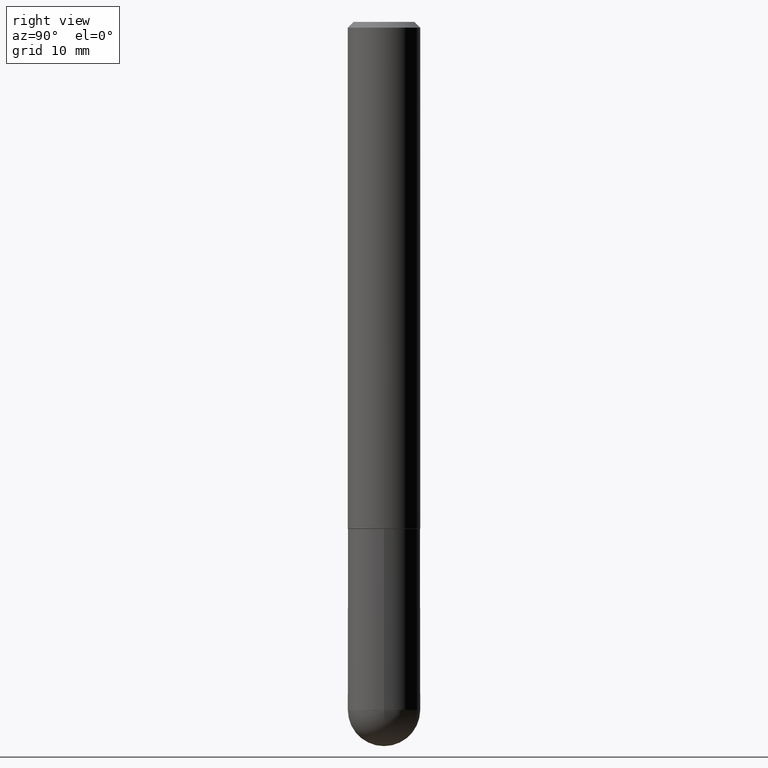
[diagram: clean part render]
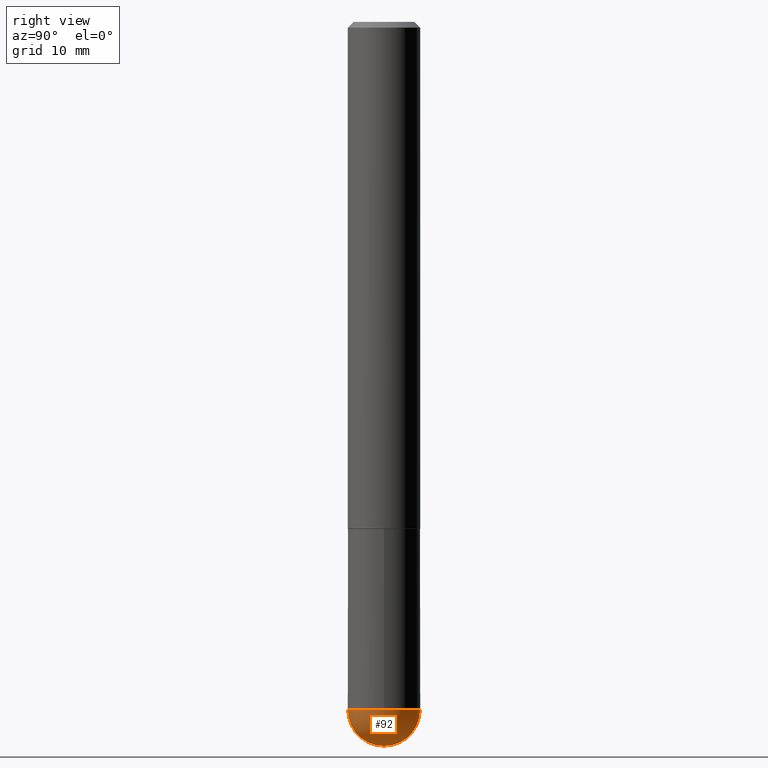
[diagram: same view with one face highlighted and labeled with its STEP entity id]
A machine part, right view. The second image highlights one B-rep face of the part: STEP entity #92.
In plain terms, the highlighted spherical surface has radius 3.175 mm.
Its self-contained STEP definition (entity closure, byte-faithful):
#36 = AXIS2_PLACEMENT_3D ( 'NONE', #205, #38, #174 ) ;
#38 = DIRECTION ( 'NONE',  ( 1.000000000000000000, -6.982962677686265922E-15, 4.883557194083112340E-29 ) ) ;
#58 = AXIS2_PLACEMENT_3D ( 'NONE', #84, #299, #400 ) ;
#69 = CARTESIAN_POINT ( 'NONE',  ( -8.881784197000694204E-16, -0.1250000000000086320, -2.374999999999999556 ) ) ;
#74 = VERTEX_POINT ( 'NONE', #234 ) ;
#78 = DIRECTION ( 'NONE',  ( -2.445468806185136597E-29, 3.491481338843145583E-15, 1.000000000000000000 ) ) ;
#79 = CIRCLE ( 'NONE', #311, 0.1250000000000001943 ) ;
#81 = DIRECTION ( 'NONE',  ( -1.000000000000000000, 7.105427357601001070E-15, -4.926315508542082329E-29 ) ) ;
#82 = EDGE_CURVE ( 'NONE', #74, #252, #175, .T. ) ;
#84 = CARTESIAN_POINT ( 'NONE',  ( 5.807988414689700538E-29, -8.292268179752471696E-15, -2.375000000000000000 ) ) ;
#85 = FACE_OUTER_BOUND ( 'NONE', #245, .T. ) ;
#87 = EDGE_CURVE ( 'NONE', #91, #252, #276, .T. ) ;
#91 = VERTEX_POINT ( 'NONE', #343 ) ;
#92 = ADVANCED_FACE ( 'NONE', ( #85 ), #352, .T. ) ;
#105 = CARTESIAN_POINT ( 'NONE',  ( 5.807988414689700538E-29, -8.292268179752471696E-15, -2.375000000000000000 ) ) ;
#107 = DIRECTION ( 'NONE',  ( 1.000000000000000000, -6.982962677686270655E-15, 0.000000000000000000 ) ) ;
#139 = CARTESIAN_POINT ( 'NONE',  ( 8.728703347108403340E-16, 0.1249999999999915623, -2.375000000000000888 ) ) ;
#149 = AXIS2_PLACEMENT_3D ( 'NONE', #170, #196, #290 ) ;
#154 = VERTEX_POINT ( 'NONE', #69 ) ;
#170 = CARTESIAN_POINT ( 'NONE',  ( 5.476868636775814291E-29, -8.766450547892521992E-15, -2.375000000000000000 ) ) ;
#174 = DIRECTION ( 'NONE',  ( 6.982962677686265133E-15, 1.000000000000000000, 0.000000000000000000 ) ) ;
#175 = CIRCLE ( 'NONE', #36, 0.1250000000000001943 ) ;
#196 = DIRECTION ( 'NONE',  ( -1.000000000000000000, 6.982962677686265922E-15, -4.883557194083112901E-29 ) ) ;
#205 = CARTESIAN_POINT ( 'NONE',  ( 5.476868636775814291E-29, -8.766450547892521992E-15, -2.375000000000000000 ) ) ;
#206 = EDGE_CURVE ( 'NONE', #154, #91, #339, .T. ) ;
#214 = DIRECTION ( 'NONE',  ( -7.105427357601000281E-15, -1.000000000000000000, 0.000000000000000000 ) ) ;
#220 = ORIENTED_EDGE ( 'NONE', *, *, #87, .F. ) ;
#232 = ORIENTED_EDGE ( 'NONE', *, *, #82, .T. ) ;
#234 = CARTESIAN_POINT ( 'NONE',  ( 5.787897026856327965E-29, -9.195231672753244292E-15, -2.500000000000000444 ) ) ;
#245 = EDGE_LOOP ( 'NONE', ( #321, #232, #220, #249 ) ) ;
#249 = ORIENTED_EDGE ( 'NONE', *, *, #206, .F. ) ;
#252 = VERTEX_POINT ( 'NONE', #139 ) ;
#276 = CIRCLE ( 'NONE', #403, 0.1250000000000000000 ) ;
#287 = EDGE_CURVE ( 'NONE', #74, #154, #79, .T. ) ;
#290 = DIRECTION ( 'NONE',  ( 6.982962677686265922E-15, 1.000000000000000000, -4.370956789862814839E-15 ) ) ;
#299 = DIRECTION ( 'NONE',  ( -2.445468806185136597E-29, 3.491481338843145583E-15, 1.000000000000000000 ) ) ;
#303 = CARTESIAN_POINT ( 'NONE',  ( 5.476868636775814291E-29, -8.766450547892521992E-15, -2.375000000000000000 ) ) ;
#311 = AXIS2_PLACEMENT_3D ( 'NONE', #303, #81, #214 ) ;
#321 = ORIENTED_EDGE ( 'NONE', *, *, #287, .F. ) ;
#339 = CIRCLE ( 'NONE', #58, 0.1250000000000000000 ) ;
#343 = CARTESIAN_POINT ( 'NONE',  ( 0.1250000000000000000, -8.074050596074771916E-15, -2.375000000000000000 ) ) ;
#352 = SPHERICAL_SURFACE ( 'NONE', #149, 0.1250000000000001943 ) ;
#400 = DIRECTION ( 'NONE',  ( 1.000000000000000000, -6.982962677686270655E-15, 0.000000000000000000 ) ) ;
#403 = AXIS2_PLACEMENT_3D ( 'NONE', #105, #78, #107 ) ;